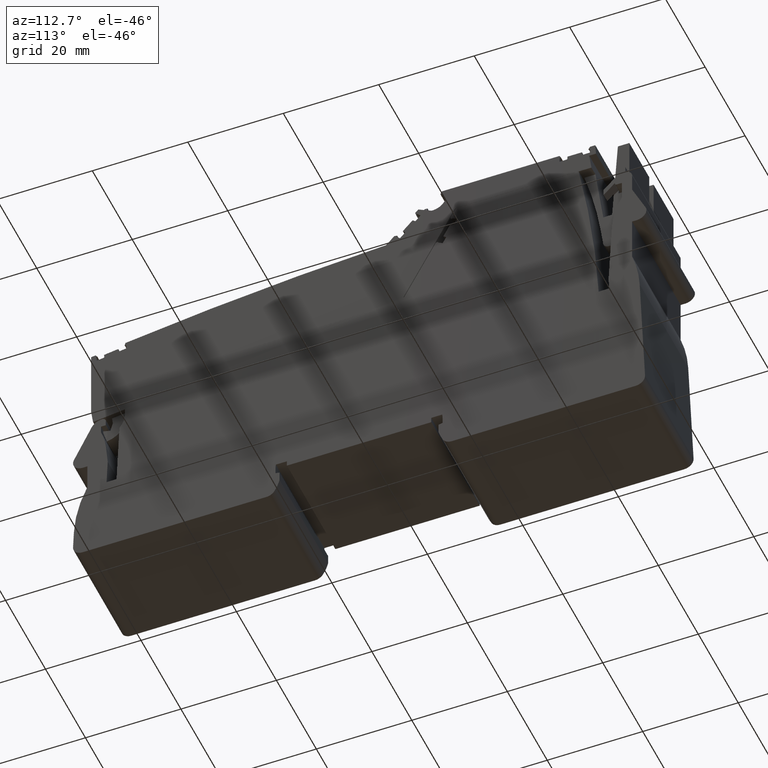
[diagram: clean part render]
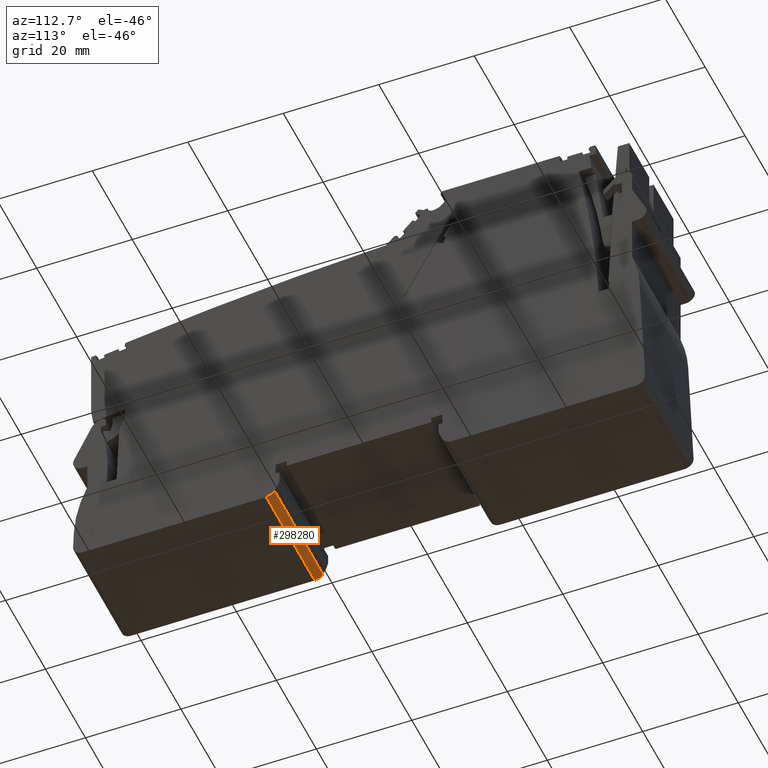
[diagram: same view with one face highlighted and labeled with its STEP entity id]
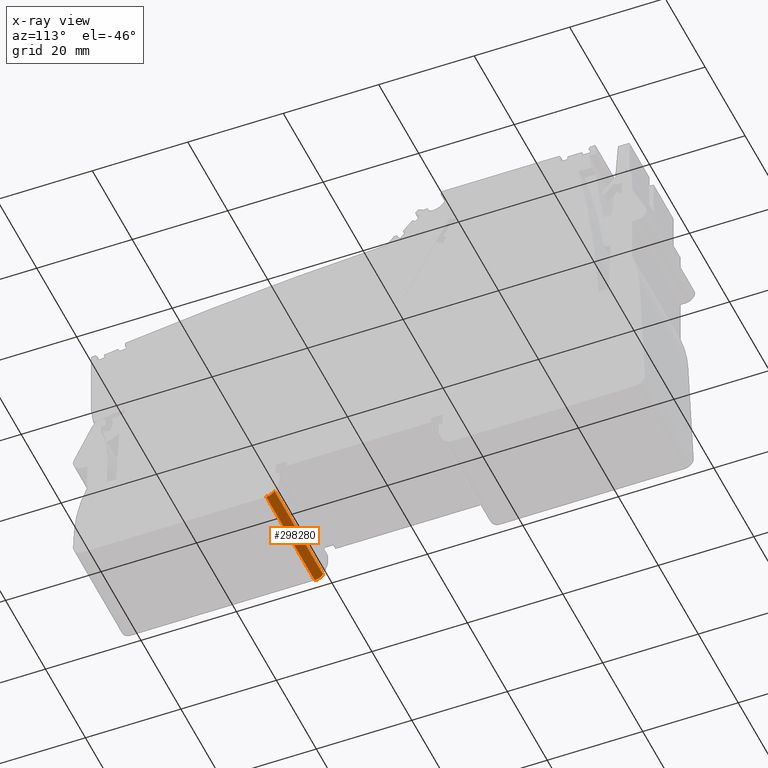
[diagram: x-ray of the same camera — body ghosted, the highlighted face saturated]
A machine part, auxiliary view. The second image highlights one B-rep face of the part: STEP entity #298280.
The next image is the same camera in x-ray: the body ghosted, the highlighted face saturated — about 0% of this face is hidden behind the body in this view.
In plain terms, the highlighted cylindrical surface (edge-blend (fillet) strip) has radius 2 mm, axis along (-1, 0, -0).
Its self-contained STEP definition (entity closure, byte-faithful):
#175840=CARTESIAN_POINT('',(218.818969543425,-61.9676114301259,12.15));
#175850=VERTEX_POINT('',#175840);
#175880=CARTESIAN_POINT('',(217.09468547299,-60.9542780967926,12.15));
#175890=DIRECTION('',(-1.61619556307429E-58,-1.53640057743941E-44,-1.));
#175900=DIRECTION('',(-1.,1.05193631583234E-14,0.));
#175910=AXIS2_PLACEMENT_3D('',#175880,#175890,#175900);
#175920=CIRCLE('',#175910,2.);
#175930=CARTESIAN_POINT('',(217.09468547299,-62.9542780967931,12.15));
#175940=VERTEX_POINT('',#175930);
#175950=EDGE_CURVE('',#175850,#175940,#175920,.T.);
#184390=CARTESIAN_POINT('',(217.09468547299,-62.9542780967931,-12.15));
#184400=VERTEX_POINT('',#184390);
#184430=CARTESIAN_POINT('',(217.09468547299,-60.9542780967926,-12.15));
#184440=DIRECTION('',(-1.61619556307429E-58,-1.53640057743941E-44,-1.));
#184450=DIRECTION('',(-1.,1.05193631583234E-14,0.));
#184460=AXIS2_PLACEMENT_3D('',#184430,#184440,#184450);
#184470=CIRCLE('',#184460,2.);
#184480=CARTESIAN_POINT('',(218.818969543425,-61.9676114301259,-12.15));
#184490=VERTEX_POINT('',#184480);
#184500=EDGE_CURVE('',#184490,#184400,#184470,.T.);
#297960=CARTESIAN_POINT('',(218.818969543425,-61.9676114301259,-12.15));
#297970=DIRECTION('',(1.61619556307429E-58,1.53640057743941E-44,1.));
#297980=VECTOR('',#297970,1.);
#297990=LINE('',#297960,#297980);
#298000=EDGE_CURVE('',#184490,#175850,#297990,.T.);
#298120=CARTESIAN_POINT('',(217.09468547299,-60.9542780967926,-12.15));
#298130=DIRECTION('',(-1.61619556307429E-58,-1.53640057743941E-44,-1.));
#298140=DIRECTION('',(-1.,1.05193631583234E-14,0.));
#298150=AXIS2_PLACEMENT_3D('',#298120,#298130,#298140);
#298160=CYLINDRICAL_SURFACE('',#298150,2.);
#298170=ORIENTED_EDGE('',*,*,#175950,.T.);
#298180=ORIENTED_EDGE('',*,*,#298000,.T.);
#298190=ORIENTED_EDGE('',*,*,#184500,.F.);
#298200=CARTESIAN_POINT('',(217.09468547299,-62.9542780967927,-12.15));
#298210=DIRECTION('',(1.61619556307429E-58,1.53640057743941E-44,1.));
#298220=VECTOR('',#298210,1.);
#298230=LINE('',#298200,#298220);
#298240=EDGE_CURVE('',#184400,#175940,#298230,.T.);
#298250=ORIENTED_EDGE('',*,*,#298240,.F.);
#298260=EDGE_LOOP('',(#298250,#298190,#298180,#298170));
#298270=FACE_OUTER_BOUND('',#298260,.T.);
#298280=ADVANCED_FACE('',(#298270),#298160,.T.);